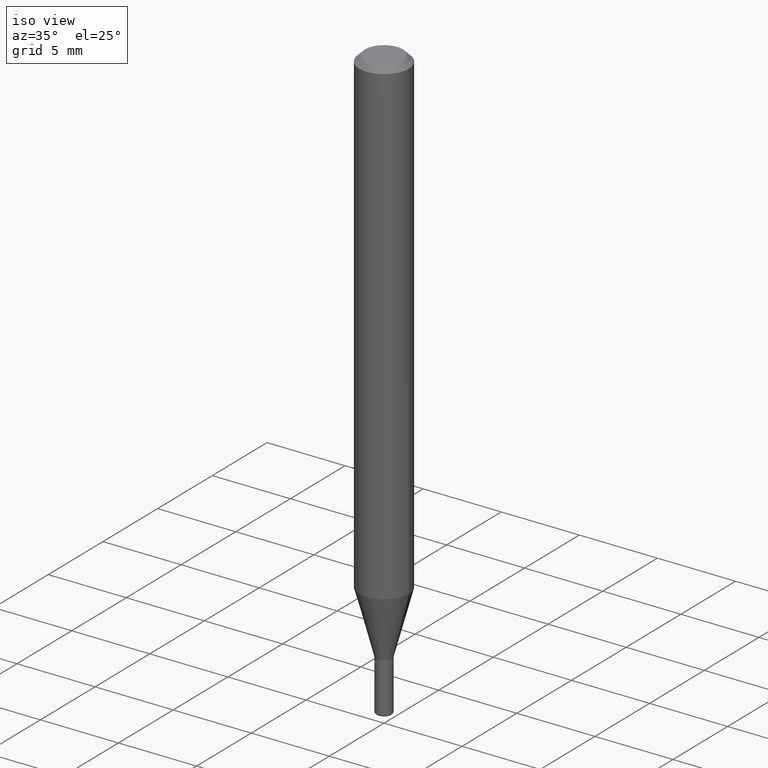
[diagram: clean part render]
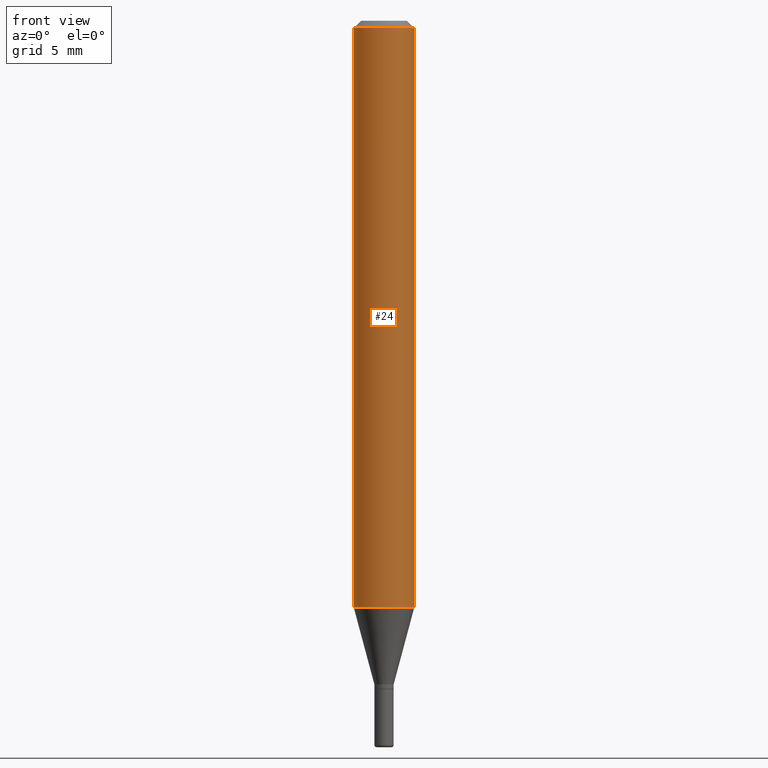
[diagram: tour spotlight — one face highlighted and labeled with its STEP entity id]
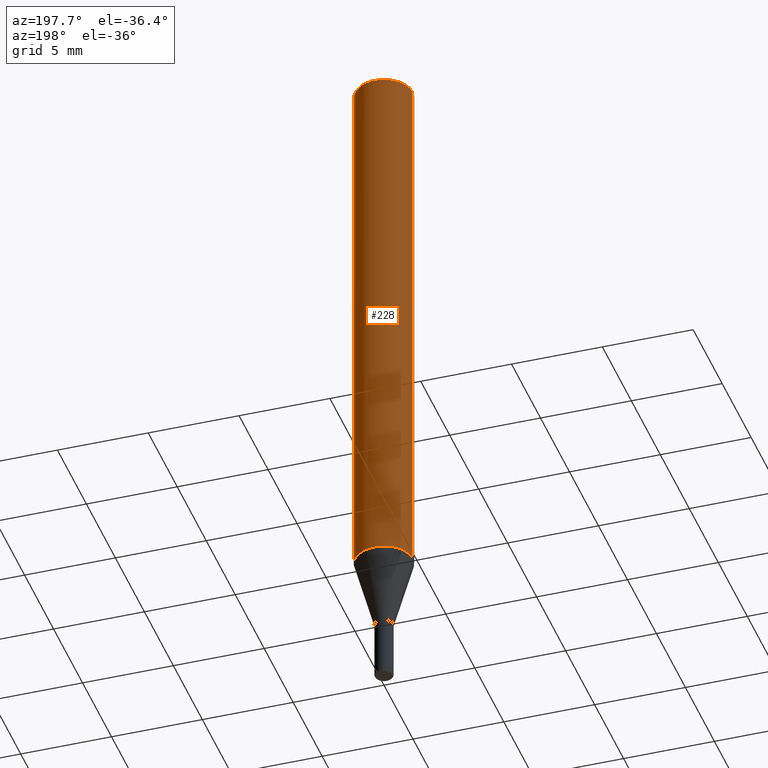
[diagram: tour spotlight — one face highlighted and labeled with its STEP entity id]
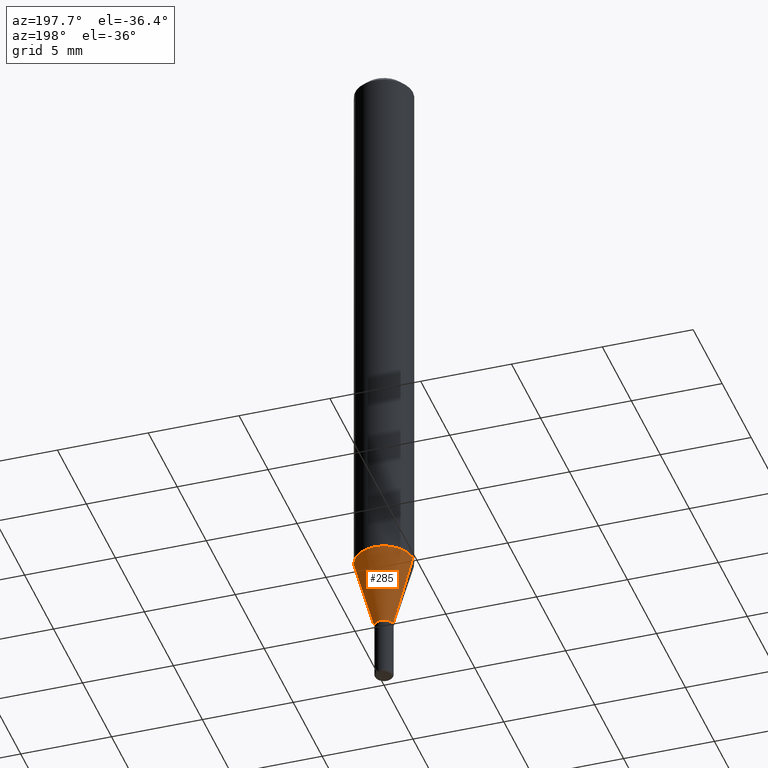
[diagram: tour spotlight — one face highlighted and labeled with its STEP entity id]
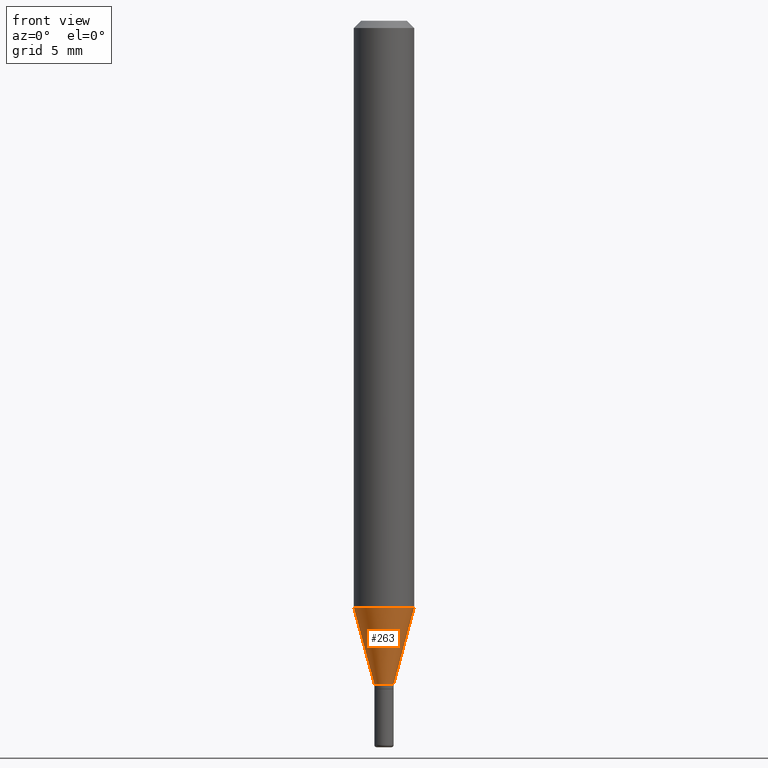
[diagram: tour spotlight — one face highlighted and labeled with its STEP entity id]
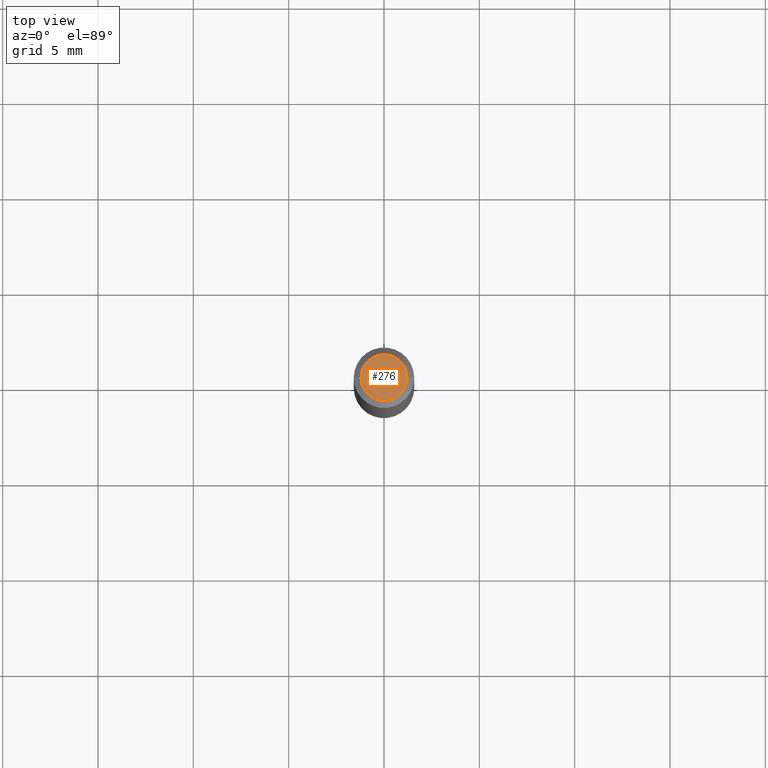
[diagram: tour spotlight — one face highlighted and labeled with its STEP entity id]
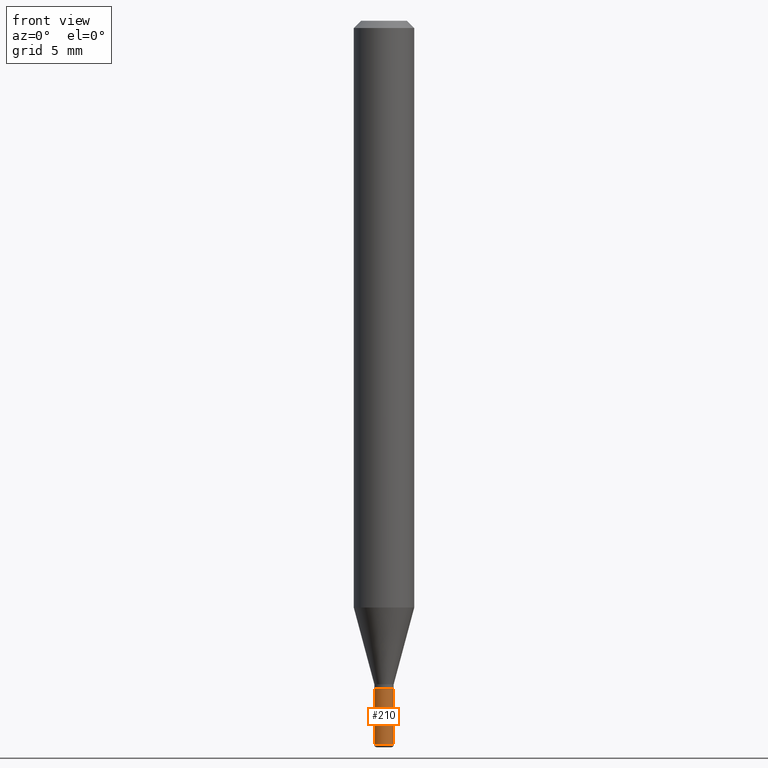
[diagram: tour spotlight — one face highlighted and labeled with its STEP entity id]
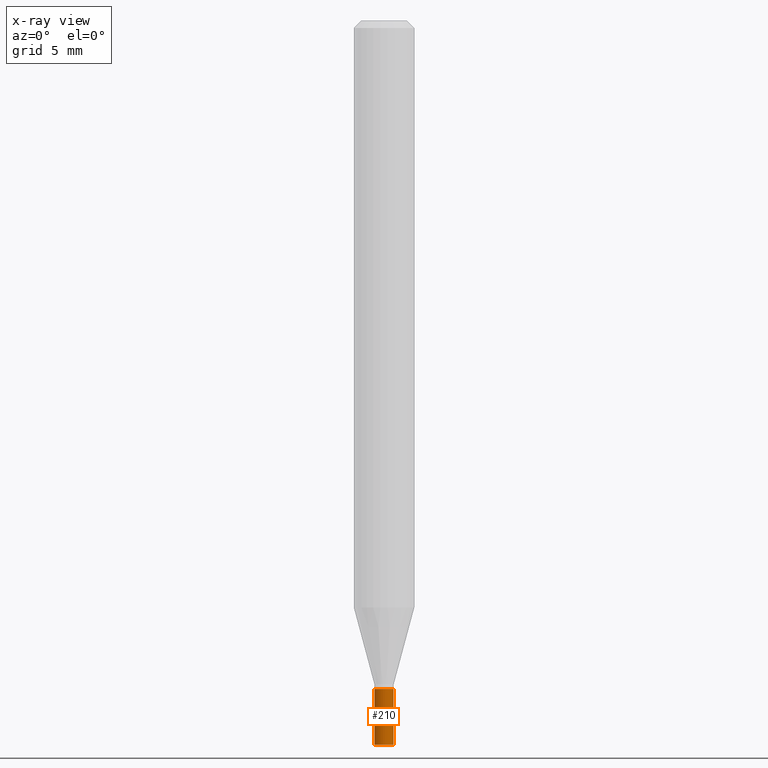
[diagram: x-ray of the same camera — body ghosted, this tour face saturated]
A machine part: a face-by-face anatomy tour. The part has 18 B-rep faces; the first image is the clean iso view, then the 6 largest visible faces are spotlighted one at a time (largest first), each with its STEP entity span.

Face 1 — front view, entity #24. In plain terms, the highlighted cylindrical surface (edge-blend (fillet) strip) has radius 1.5875 mm, axis along (-0, 0, 1).
Definition (entity closure, byte-faithful):
#4 = AXIS2_PLACEMENT_3D ( 'NONE', #487, #155, #360 ) ;
#8 = DIRECTION ( 'NONE',  ( 1.000000000000000000, -6.982962677686266711E-15, 0.000000000000000000 ) ) ;
#12 = EDGE_CURVE ( 'NONE', #375, #143, #115, .T. ) ;
#15 = VERTEX_POINT ( 'NONE', #246 ) ;
#22 = CARTESIAN_POINT ( 'NONE',  ( 2.962411176570810218E-29, -4.229538039829860109E-15, -1.211387840678323391 ) ) ;
#24 = ADVANCED_FACE ( 'NONE', ( #238 ), #359, .T. ) ;
#62 = ORIENTED_EDGE ( 'NONE', *, *, #498, .T. ) ;
#69 = EDGE_CURVE ( 'NONE', #138, #15, #376, .T. ) ;
#70 = EDGE_LOOP ( 'NONE', ( #204, #126, #62, #147 ) ) ;
#98 = DIRECTION ( 'NONE',  ( -2.445468806185136597E-29, 3.491481338843145583E-15, 1.000000000000000000 ) ) ;
#113 = EDGE_CURVE ( 'NONE', #375, #138, #396, .T. ) ;
#115 = CIRCLE ( 'NONE', #476, 0.06250000000000000000 ) ;
#126 = ORIENTED_EDGE ( 'NONE', *, *, #12, .T. ) ;
#129 = AXIS2_PLACEMENT_3D ( 'NONE', #301, #310, #8 ) ;
#138 = VERTEX_POINT ( 'NONE', #144 ) ;
#143 = VERTEX_POINT ( 'NONE', #183 ) ;
#144 = CARTESIAN_POINT ( 'NONE',  ( -0.06250000000000000000, -1.696865920106190386E-15, -0.01499999999999970281 ) ) ;
#147 = ORIENTED_EDGE ( 'NONE', *, *, #69, .F. ) ;
#148 = CARTESIAN_POINT ( 'NONE',  ( -0.06250000000000000000, 4.440892098500626162E-16, -3.074334431409316114E-30 ) ) ;
#149 = DIRECTION ( 'NONE',  ( -2.445468806185136877E-29, 3.491481338843145188E-15, 1.000000000000000000 ) ) ;
#155 = DIRECTION ( 'NONE',  ( -2.445468806185136597E-29, 3.491481338843145583E-15, 1.000000000000000000 ) ) ;
#183 = CARTESIAN_POINT ( 'NONE',  ( 0.06250000000000000000, -4.665973207185250989E-15, -1.211387840678323391 ) ) ;
#204 = ORIENTED_EDGE ( 'NONE', *, *, #113, .F. ) ;
#238 = FACE_OUTER_BOUND ( 'NONE', #70, .T. ) ;
#246 = CARTESIAN_POINT ( 'NONE',  ( 0.06250000000000000000, -4.888073874380378612E-16, -0.01499999999999970281 ) ) ;
#279 = CARTESIAN_POINT ( 'NONE',  ( -0.06250000000000000000, -3.785448829979796704E-15, -1.211387840678323391 ) ) ;
#300 = LINE ( 'NONE', #304, #490 ) ;
#301 = CARTESIAN_POINT ( 'NONE',  ( 3.668203209277632395E-31, -5.237222008264614861E-17, -0.01499999999999970281 ) ) ;
#304 = CARTESIAN_POINT ( 'NONE',  ( 0.06250000000000000000, -4.364351673553916694E-16, 3.047610484872459871E-30 ) ) ;
#310 = DIRECTION ( 'NONE',  ( -2.445468806185136597E-29, 3.491481338843145583E-15, 1.000000000000000000 ) ) ;
#329 = DIRECTION ( 'NONE',  ( 1.000000000000000000, -6.982962677686270655E-15, 0.000000000000000000 ) ) ;
#359 = CYLINDRICAL_SURFACE ( 'NONE', #4, 0.06250000000000000000 ) ;
#360 = DIRECTION ( 'NONE',  ( 1.000000000000000000, -6.982962677686266711E-15, 4.876176775795935793E-29 ) ) ;
#375 = VERTEX_POINT ( 'NONE', #279 ) ;
#376 = CIRCLE ( 'NONE', #129, 0.06250000000000000000 ) ;
#396 = LINE ( 'NONE', #148, #402 ) ;
#402 = VECTOR ( 'NONE', #468, 39.37007874015748143 ) ;
#468 = DIRECTION ( 'NONE',  ( -2.445468806185136877E-29, 3.491481338843145188E-15, 1.000000000000000000 ) ) ;
#476 = AXIS2_PLACEMENT_3D ( 'NONE', #22, #98, #329 ) ;
#487 = CARTESIAN_POINT ( 'NONE',  ( 0.000000000000000000, 0.000000000000000000, 0.000000000000000000 ) ) ;
#490 = VECTOR ( 'NONE', #149, 39.37007874015748143 ) ;
#498 = EDGE_CURVE ( 'NONE', #143, #15, #300, .T. ) ;

Face 2 — auxiliary view, entity #228. In plain terms, the highlighted cylindrical surface (edge-blend (fillet) strip) has radius 1.5875 mm, axis along (-0, 0, 1).
Definition (entity closure, byte-faithful):
#15 = VERTEX_POINT ( 'NONE', #246 ) ;
#26 = CIRCLE ( 'NONE', #514, 0.06250000000000000000 ) ;
#34 = DIRECTION ( 'NONE',  ( 1.000000000000000000, -6.982962677686266711E-15, 4.876176775795935793E-29 ) ) ;
#53 = AXIS2_PLACEMENT_3D ( 'NONE', #223, #382, #34 ) ;
#75 = FACE_OUTER_BOUND ( 'NONE', #398, .T. ) ;
#97 = EDGE_CURVE ( 'NONE', #143, #375, #187, .T. ) ;
#110 = CYLINDRICAL_SURFACE ( 'NONE', #53, 0.06250000000000000000 ) ;
#113 = EDGE_CURVE ( 'NONE', #375, #138, #396, .T. ) ;
#119 = DIRECTION ( 'NONE',  ( 1.000000000000000000, -6.982962677686270655E-15, 0.000000000000000000 ) ) ;
#138 = VERTEX_POINT ( 'NONE', #144 ) ;
#143 = VERTEX_POINT ( 'NONE', #183 ) ;
#144 = CARTESIAN_POINT ( 'NONE',  ( -0.06250000000000000000, -1.696865920106190386E-15, -0.01499999999999970281 ) ) ;
#148 = CARTESIAN_POINT ( 'NONE',  ( -0.06250000000000000000, 4.440892098500626162E-16, -3.074334431409316114E-30 ) ) ;
#149 = DIRECTION ( 'NONE',  ( -2.445468806185136877E-29, 3.491481338843145188E-15, 1.000000000000000000 ) ) ;
#158 = CARTESIAN_POINT ( 'NONE',  ( 2.962411176570810218E-29, -4.229538039829860109E-15, -1.211387840678323391 ) ) ;
#164 = CARTESIAN_POINT ( 'NONE',  ( 3.668203209277632395E-31, -5.237222008264614861E-17, -0.01499999999999970281 ) ) ;
#166 = DIRECTION ( 'NONE',  ( 1.000000000000000000, -6.982962677686266711E-15, 0.000000000000000000 ) ) ;
#183 = CARTESIAN_POINT ( 'NONE',  ( 0.06250000000000000000, -4.665973207185250989E-15, -1.211387840678323391 ) ) ;
#187 = CIRCLE ( 'NONE', #267, 0.06250000000000000000 ) ;
#203 = EDGE_CURVE ( 'NONE', #15, #138, #26, .T. ) ;
#223 = CARTESIAN_POINT ( 'NONE',  ( 0.000000000000000000, 0.000000000000000000, 0.000000000000000000 ) ) ;
#228 = ADVANCED_FACE ( 'NONE', ( #75 ), #110, .T. ) ;
#246 = CARTESIAN_POINT ( 'NONE',  ( 0.06250000000000000000, -4.888073874380378612E-16, -0.01499999999999970281 ) ) ;
#267 = AXIS2_PLACEMENT_3D ( 'NONE', #158, #437, #119 ) ;
#279 = CARTESIAN_POINT ( 'NONE',  ( -0.06250000000000000000, -3.785448829979796704E-15, -1.211387840678323391 ) ) ;
#284 = ORIENTED_EDGE ( 'NONE', *, *, #113, .T. ) ;
#300 = LINE ( 'NONE', #304, #490 ) ;
#304 = CARTESIAN_POINT ( 'NONE',  ( 0.06250000000000000000, -4.364351673553916694E-16, 3.047610484872459871E-30 ) ) ;
#305 = ORIENTED_EDGE ( 'NONE', *, *, #498, .F. ) ;
#313 = ORIENTED_EDGE ( 'NONE', *, *, #97, .T. ) ;
#375 = VERTEX_POINT ( 'NONE', #279 ) ;
#382 = DIRECTION ( 'NONE',  ( -2.445468806185136597E-29, 3.491481338843145583E-15, 1.000000000000000000 ) ) ;
#396 = LINE ( 'NONE', #148, #402 ) ;
#398 = EDGE_LOOP ( 'NONE', ( #313, #284, #454, #305 ) ) ;
#402 = VECTOR ( 'NONE', #468, 39.37007874015748143 ) ;
#404 = DIRECTION ( 'NONE',  ( -2.445468806185136597E-29, 3.491481338843145583E-15, 1.000000000000000000 ) ) ;
#437 = DIRECTION ( 'NONE',  ( -2.445468806185136597E-29, 3.491481338843145583E-15, 1.000000000000000000 ) ) ;
#454 = ORIENTED_EDGE ( 'NONE', *, *, #203, .F. ) ;
#468 = DIRECTION ( 'NONE',  ( -2.445468806185136877E-29, 3.491481338843145188E-15, 1.000000000000000000 ) ) ;
#490 = VECTOR ( 'NONE', #149, 39.37007874015748143 ) ;
#498 = EDGE_CURVE ( 'NONE', #143, #15, #300, .T. ) ;
#514 = AXIS2_PLACEMENT_3D ( 'NONE', #164, #404, #166 ) ;

Face 3 — auxiliary view, entity #285. In plain terms, the highlighted conical surface has half-angle 15 deg.
Definition (entity closure, byte-faithful):
#5 = CARTESIAN_POINT ( 'NONE',  ( 3.350292264473637608E-29, -4.783329434215110683E-15, -1.370000000000000329 ) ) ;
#49 = VERTEX_POINT ( 'NONE', #163 ) ;
#64 = CARTESIAN_POINT ( 'NONE',  ( 0.02000000000000008021, -4.922988687768836490E-15, -1.370000000000000329 ) ) ;
#80 = VECTOR ( 'NONE', #208, 39.37007874015748854 ) ;
#97 = EDGE_CURVE ( 'NONE', #143, #375, #187, .T. ) ;
#102 = LINE ( 'NONE', #265, #80 ) ;
#117 = DIRECTION ( 'NONE',  ( -2.445468806185136597E-29, 3.491481338843145583E-15, 1.000000000000000000 ) ) ;
#119 = DIRECTION ( 'NONE',  ( 1.000000000000000000, -6.982962677686270655E-15, 0.000000000000000000 ) ) ;
#131 = CARTESIAN_POINT ( 'NONE',  ( -0.02000000000000008021, -4.641220887063090519E-15, -1.370000000000000329 ) ) ;
#136 = AXIS2_PLACEMENT_3D ( 'NONE', #5, #117, #390 ) ;
#143 = VERTEX_POINT ( 'NONE', #183 ) ;
#151 = AXIS2_PLACEMENT_3D ( 'NONE', #229, #348, #434 ) ;
#158 = CARTESIAN_POINT ( 'NONE',  ( 2.962411176570810218E-29, -4.229538039829860109E-15, -1.211387840678323391 ) ) ;
#163 = CARTESIAN_POINT ( 'NONE',  ( -0.02000000000000008021, -4.213334858521442823E-15, -1.370000000000000329 ) ) ;
#183 = CARTESIAN_POINT ( 'NONE',  ( 0.06250000000000000000, -4.665973207185250989E-15, -1.211387840678323391 ) ) ;
#187 = CIRCLE ( 'NONE', #267, 0.06250000000000000000 ) ;
#197 = ORIENTED_EDGE ( 'NONE', *, *, #306, .T. ) ;
#208 = DIRECTION ( 'NONE',  ( 0.2588190451025206285, 1.565188264969627095E-15, 0.9659258262890682012 ) ) ;
#229 = CARTESIAN_POINT ( 'NONE',  ( 3.350292264473637608E-29, -4.783329434215110683E-15, -1.370000000000000329 ) ) ;
#230 = CIRCLE ( 'NONE', #151, 0.02000000000000008021 ) ;
#235 = VECTOR ( 'NONE', #242, 39.37007874015748854 ) ;
#242 = DIRECTION ( 'NONE',  ( -0.2588190451025206285, 5.211531920934544731E-15, 0.9659258262890682012 ) ) ;
#265 = CARTESIAN_POINT ( 'NONE',  ( 0.02000000000000008021, -4.922988687768836490E-15, -1.370000000000000329 ) ) ;
#267 = AXIS2_PLACEMENT_3D ( 'NONE', #158, #437, #119 ) ;
#274 = ORIENTED_EDGE ( 'NONE', *, *, #320, .F. ) ;
#279 = CARTESIAN_POINT ( 'NONE',  ( -0.06250000000000000000, -3.785448829979796704E-15, -1.211387840678323391 ) ) ;
#283 = LINE ( 'NONE', #131, #235 ) ;
#285 = ADVANCED_FACE ( 'NONE', ( #346 ), #466, .T. ) ;
#306 = EDGE_CURVE ( 'NONE', #503, #49, #230, .T. ) ;
#320 = EDGE_CURVE ( 'NONE', #503, #143, #102, .T. ) ;
#346 = FACE_OUTER_BOUND ( 'NONE', #475, .T. ) ;
#348 = DIRECTION ( 'NONE',  ( -2.445468806185136597E-29, 3.491481338843145583E-15, 1.000000000000000000 ) ) ;
#375 = VERTEX_POINT ( 'NONE', #279 ) ;
#383 = EDGE_CURVE ( 'NONE', #49, #375, #283, .T. ) ;
#390 = DIRECTION ( 'NONE',  ( 1.000000000000000000, -6.982962677686256455E-15, 0.000000000000000000 ) ) ;
#406 = ORIENTED_EDGE ( 'NONE', *, *, #383, .T. ) ;
#434 = DIRECTION ( 'NONE',  ( 1.000000000000000000, -6.982962677686256455E-15, 0.000000000000000000 ) ) ;
#437 = DIRECTION ( 'NONE',  ( -2.445468806185136597E-29, 3.491481338843145583E-15, 1.000000000000000000 ) ) ;
#466 = CONICAL_SURFACE ( 'NONE', #136, 0.02000000000000008021, 0.2617993877991493523 ) ;
#475 = EDGE_LOOP ( 'NONE', ( #197, #406, #499, #274 ) ) ;
#499 = ORIENTED_EDGE ( 'NONE', *, *, #97, .F. ) ;
#503 = VERTEX_POINT ( 'NONE', #64 ) ;

Face 4 — front view, entity #263. In plain terms, the highlighted conical surface has half-angle 15 deg.
Definition (entity closure, byte-faithful):
#12 = EDGE_CURVE ( 'NONE', #375, #143, #115, .T. ) ;
#22 = CARTESIAN_POINT ( 'NONE',  ( 2.962411176570810218E-29, -4.229538039829860109E-15, -1.211387840678323391 ) ) ;
#25 = DIRECTION ( 'NONE',  ( -2.445468806185136597E-29, 3.491481338843145583E-15, 1.000000000000000000 ) ) ;
#37 = CONICAL_SURFACE ( 'NONE', #167, 0.02000000000000008021, 0.2617993877991493523 ) ;
#49 = VERTEX_POINT ( 'NONE', #163 ) ;
#64 = CARTESIAN_POINT ( 'NONE',  ( 0.02000000000000008021, -4.922988687768836490E-15, -1.370000000000000329 ) ) ;
#80 = VECTOR ( 'NONE', #208, 39.37007874015748854 ) ;
#98 = DIRECTION ( 'NONE',  ( -2.445468806185136597E-29, 3.491481338843145583E-15, 1.000000000000000000 ) ) ;
#102 = LINE ( 'NONE', #265, #80 ) ;
#107 = CARTESIAN_POINT ( 'NONE',  ( 3.350292264473637608E-29, -4.783329434215110683E-15, -1.370000000000000329 ) ) ;
#115 = CIRCLE ( 'NONE', #476, 0.06250000000000000000 ) ;
#131 = CARTESIAN_POINT ( 'NONE',  ( -0.02000000000000008021, -4.641220887063090519E-15, -1.370000000000000329 ) ) ;
#143 = VERTEX_POINT ( 'NONE', #183 ) ;
#162 = ORIENTED_EDGE ( 'NONE', *, *, #513, .T. ) ;
#163 = CARTESIAN_POINT ( 'NONE',  ( -0.02000000000000008021, -4.213334858521442823E-15, -1.370000000000000329 ) ) ;
#167 = AXIS2_PLACEMENT_3D ( 'NONE', #447, #25, #443 ) ;
#183 = CARTESIAN_POINT ( 'NONE',  ( 0.06250000000000000000, -4.665973207185250989E-15, -1.211387840678323391 ) ) ;
#208 = DIRECTION ( 'NONE',  ( 0.2588190451025206285, 1.565188264969627095E-15, 0.9659258262890682012 ) ) ;
#218 = ORIENTED_EDGE ( 'NONE', *, *, #383, .F. ) ;
#220 = DIRECTION ( 'NONE',  ( -2.445468806185136597E-29, 3.491481338843145583E-15, 1.000000000000000000 ) ) ;
#235 = VECTOR ( 'NONE', #242, 39.37007874015748854 ) ;
#242 = DIRECTION ( 'NONE',  ( -0.2588190451025206285, 5.211531920934544731E-15, 0.9659258262890682012 ) ) ;
#263 = ADVANCED_FACE ( 'NONE', ( #497 ), #37, .T. ) ;
#265 = CARTESIAN_POINT ( 'NONE',  ( 0.02000000000000008021, -4.922988687768836490E-15, -1.370000000000000329 ) ) ;
#279 = CARTESIAN_POINT ( 'NONE',  ( -0.06250000000000000000, -3.785448829979796704E-15, -1.211387840678323391 ) ) ;
#283 = LINE ( 'NONE', #131, #235 ) ;
#295 = ORIENTED_EDGE ( 'NONE', *, *, #12, .F. ) ;
#320 = EDGE_CURVE ( 'NONE', #503, #143, #102, .T. ) ;
#329 = DIRECTION ( 'NONE',  ( 1.000000000000000000, -6.982962677686270655E-15, 0.000000000000000000 ) ) ;
#375 = VERTEX_POINT ( 'NONE', #279 ) ;
#383 = EDGE_CURVE ( 'NONE', #49, #375, #283, .T. ) ;
#386 = ORIENTED_EDGE ( 'NONE', *, *, #320, .T. ) ;
#403 = CIRCLE ( 'NONE', #433, 0.02000000000000008021 ) ;
#433 = AXIS2_PLACEMENT_3D ( 'NONE', #107, #220, #474 ) ;
#443 = DIRECTION ( 'NONE',  ( 1.000000000000000000, -6.982962677686256455E-15, 0.000000000000000000 ) ) ;
#447 = CARTESIAN_POINT ( 'NONE',  ( 3.350292264473637608E-29, -4.783329434215110683E-15, -1.370000000000000329 ) ) ;
#474 = DIRECTION ( 'NONE',  ( 1.000000000000000000, -6.982962677686256455E-15, 0.000000000000000000 ) ) ;
#476 = AXIS2_PLACEMENT_3D ( 'NONE', #22, #98, #329 ) ;
#482 = EDGE_LOOP ( 'NONE', ( #218, #162, #386, #295 ) ) ;
#497 = FACE_OUTER_BOUND ( 'NONE', #482, .T. ) ;
#503 = VERTEX_POINT ( 'NONE', #64 ) ;
#513 = EDGE_CURVE ( 'NONE', #49, #503, #403, .T. ) ;

Face 5 — top view, entity #276. In plain terms, the highlighted planar face has unit normal (0, -0, -1).
Definition (entity closure, byte-faithful):
#2 = EDGE_CURVE ( 'NONE', #157, #448, #465, .T. ) ;
#39 = DIRECTION ( 'NONE',  ( 2.438088387897960049E-29, -3.491481338843145188E-15, -1.000000000000000000 ) ) ;
#67 = CIRCLE ( 'NONE', #458, 0.04750000000000000749 ) ;
#76 = DIRECTION ( 'NONE',  ( -2.445468806185136597E-29, 3.491481338843145583E-15, 1.000000000000000000 ) ) ;
#79 = AXIS2_PLACEMENT_3D ( 'NONE', #326, #451, #95 ) ;
#83 = AXIS2_PLACEMENT_3D ( 'NONE', #193, #39, #311 ) ;
#95 = DIRECTION ( 'NONE',  ( 1.000000000000000000, -6.982962677686266711E-15, 4.852736867747365086E-29 ) ) ;
#156 = ORIENTED_EDGE ( 'NONE', *, *, #483, .T. ) ;
#157 = VERTEX_POINT ( 'NONE', #255 ) ;
#193 = CARTESIAN_POINT ( 'NONE',  ( 3.316907271900976589E-16, 0.04750000000000000749, -2.925296391183627249E-17 ) ) ;
#217 = DIRECTION ( 'NONE',  ( 1.000000000000000000, -6.982962677686266711E-15, 4.852736867747365086E-29 ) ) ;
#237 = PLANE ( 'NONE',  #83 ) ;
#248 = CARTESIAN_POINT ( 'NONE',  ( -6.680649051745406845E-45, 9.538196290434862081E-31, 2.731847993664263218E-16 ) ) ;
#255 = CARTESIAN_POINT ( 'NONE',  ( -0.04750000000000000749, 3.578768372314221353E-16, 2.731847993664239060E-16 ) ) ;
#276 = ADVANCED_FACE ( 'NONE', ( #504 ), #237, .F. ) ;
#292 = ORIENTED_EDGE ( 'NONE', *, *, #2, .T. ) ;
#311 = DIRECTION ( 'NONE',  ( -1.000000000000000000, 6.982962677686265922E-15, -4.876176775795935793E-29 ) ) ;
#326 = CARTESIAN_POINT ( 'NONE',  ( -6.680649051745406845E-45, 9.538196290434862081E-31, 2.731847993664263218E-16 ) ) ;
#414 = CARTESIAN_POINT ( 'NONE',  ( 0.04750000000000000749, -4.035134999187568762E-16, 2.731847993664288856E-16 ) ) ;
#448 = VERTEX_POINT ( 'NONE', #414 ) ;
#451 = DIRECTION ( 'NONE',  ( -2.445468806185136597E-29, 3.491481338843145583E-15, 1.000000000000000000 ) ) ;
#453 = EDGE_LOOP ( 'NONE', ( #292, #156 ) ) ;
#458 = AXIS2_PLACEMENT_3D ( 'NONE', #248, #76, #217 ) ;
#465 = CIRCLE ( 'NONE', #79, 0.04750000000000000749 ) ;
#483 = EDGE_CURVE ( 'NONE', #448, #157, #67, .T. ) ;
#504 = FACE_OUTER_BOUND ( 'NONE', #453, .T. ) ;

Face 6 — front view, entity #210. An x-ray twin of the same camera follows (body ghosted, this face saturated) — the face is partly hidden behind the body. In plain terms, the highlighted cylindrical surface (edge-blend (fillet) strip) has radius 0.508 mm, axis along (-0, 0, 1).
Definition (entity closure, byte-faithful):
#9 = VERTEX_POINT ( 'NONE', #368 ) ;
#19 = VERTEX_POINT ( 'NONE', #233 ) ;
#29 = CARTESIAN_POINT ( 'NONE',  ( 0.000000000000000000, 0.000000000000000000, 0.000000000000000000 ) ) ;
#36 = DIRECTION ( 'NONE',  ( -2.445468806185136877E-29, 3.491481338843145188E-15, 1.000000000000000000 ) ) ;
#38 = VERTEX_POINT ( 'NONE', #202 ) ;
#50 = ORIENTED_EDGE ( 'NONE', *, *, #378, .F. ) ;
#52 = VECTOR ( 'NONE', #352, 39.37007874015748143 ) ;
#56 = EDGE_CURVE ( 'NONE', #38, #150, #319, .T. ) ;
#127 = CARTESIAN_POINT ( 'NONE',  ( 0.02000000000000009062, -1.396592535537259554E-16, 9.752353551591915727E-31 ) ) ;
#132 = CYLINDRICAL_SURFACE ( 'NONE', #456, 0.02000000000000009062 ) ;
#142 = DIRECTION ( 'NONE',  ( -2.445468806185136597E-29, 3.491481338843145583E-15, 1.000000000000000000 ) ) ;
#150 = VERTEX_POINT ( 'NONE', #298 ) ;
#160 = CIRCLE ( 'NONE', #206, 0.02000000000000018083 ) ;
#186 = DIRECTION ( 'NONE',  ( 1.000000000000000000, -6.982962677686284065E-15, 0.000000000000000000 ) ) ;
#191 = DIRECTION ( 'NONE',  ( -2.445468806185136597E-29, 3.491481338843145583E-15, 1.000000000000000000 ) ) ;
#194 = EDGE_CURVE ( 'NONE', #19, #38, #160, .T. ) ;
#202 = CARTESIAN_POINT ( 'NONE',  ( 0.02000000000000018083, -5.359423855124230526E-15, -1.495000000000000329 ) ) ;
#206 = AXIS2_PLACEMENT_3D ( 'NONE', #431, #191, #517 ) ;
#210 = ADVANCED_FACE ( 'NONE', ( #325 ), #132, .T. ) ;
#222 = EDGE_CURVE ( 'NONE', #9, #150, #485, .T. ) ;
#233 = CARTESIAN_POINT ( 'NONE',  ( -0.02000000000000018083, -4.876895877435000601E-15, -1.495000000000000329 ) ) ;
#239 = EDGE_LOOP ( 'NONE', ( #50, #467, #297, #464 ) ) ;
#297 = ORIENTED_EDGE ( 'NONE', *, *, #56, .T. ) ;
#298 = CARTESIAN_POINT ( 'NONE',  ( 0.02000000000000000042, -4.957903501157267351E-15, -1.380000000000000115 ) ) ;
#315 = LINE ( 'NONE', #397, #52 ) ;
#319 = LINE ( 'NONE', #127, #489 ) ;
#325 = FACE_OUTER_BOUND ( 'NONE', #239, .T. ) ;
#336 = DIRECTION ( 'NONE',  ( -2.445468806185136597E-29, 3.491481338843145583E-15, 1.000000000000000000 ) ) ;
#352 = DIRECTION ( 'NONE',  ( -2.445468806185136877E-29, 3.491481338843145188E-15, 1.000000000000000000 ) ) ;
#368 = CARTESIAN_POINT ( 'NONE',  ( -0.02000000000000000042, -4.876895877435002179E-15, -1.380000000000000115 ) ) ;
#378 = EDGE_CURVE ( 'NONE', #19, #9, #315, .T. ) ;
#394 = AXIS2_PLACEMENT_3D ( 'NONE', #508, #142, #186 ) ;
#397 = CARTESIAN_POINT ( 'NONE',  ( -0.02000000000000009062, 1.421085471520206811E-16, -9.837870180509856335E-31 ) ) ;
#431 = CARTESIAN_POINT ( 'NONE',  ( 3.655975865246779683E-29, -5.219764601570503930E-15, -1.495000000000000329 ) ) ;
#456 = AXIS2_PLACEMENT_3D ( 'NONE', #29, #336, #506 ) ;
#464 = ORIENTED_EDGE ( 'NONE', *, *, #222, .F. ) ;
#467 = ORIENTED_EDGE ( 'NONE', *, *, #194, .T. ) ;
#485 = CIRCLE ( 'NONE', #394, 0.02000000000000000042 ) ;
#489 = VECTOR ( 'NONE', #36, 39.37007874015748143 ) ;
#506 = DIRECTION ( 'NONE',  ( 1.000000000000000000, -6.982962677686265922E-15, 4.876176775795935793E-29 ) ) ;
#508 = CARTESIAN_POINT ( 'NONE',  ( 3.374746952535488593E-29, -4.818244247603541543E-15, -1.380000000000000115 ) ) ;
#517 = DIRECTION ( 'NONE',  ( 1.000000000000000000, -6.982962677686269077E-15, 0.000000000000000000 ) ) ;